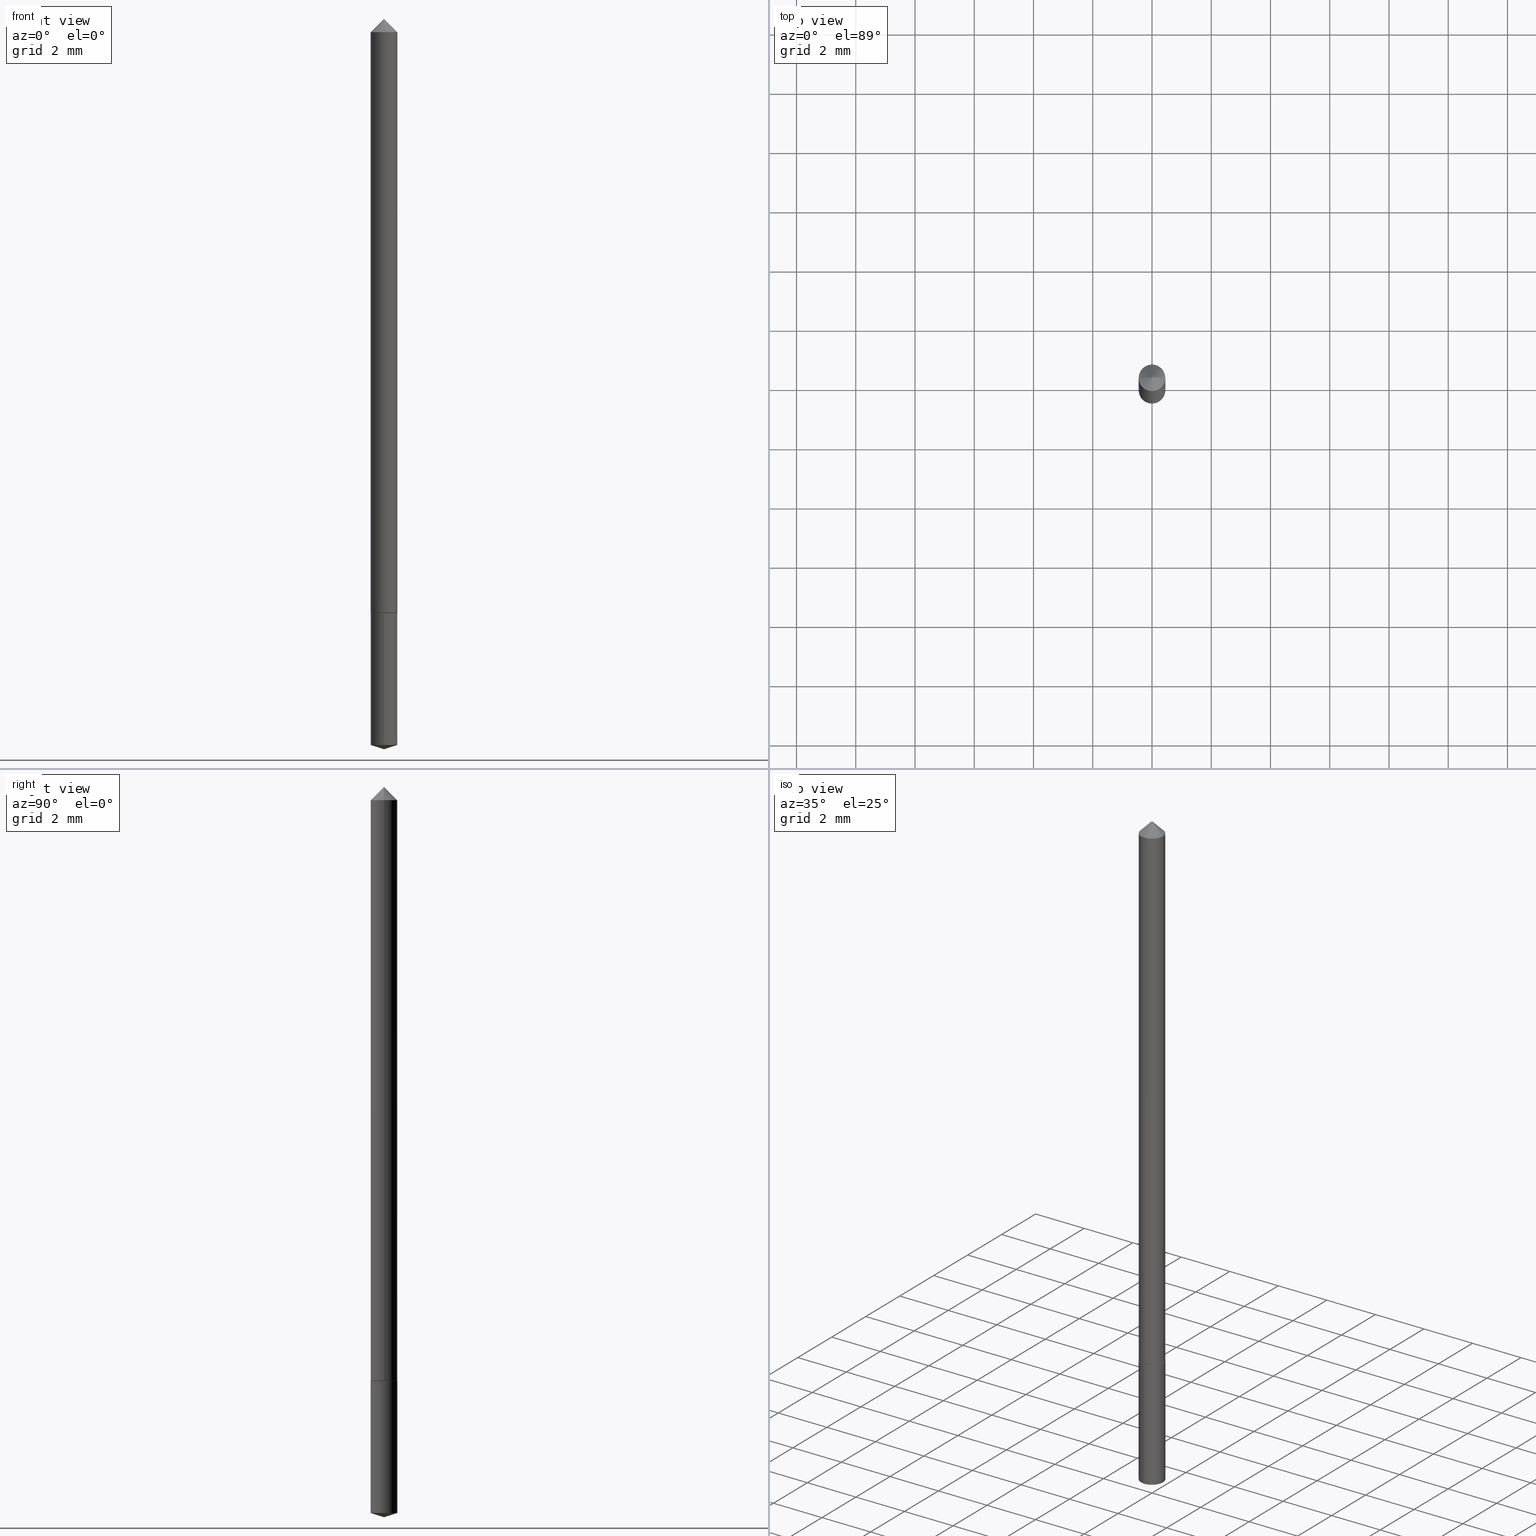
[diagram: canonical four-view strip — front | top / right | iso, engineering-drawing reading convention]
A machine part, canonical four-view strip (front | top / right | iso — engineering-drawing reading convention). The complete STEP part file that produces these views, byte-faithful:
ISO-10303-21;
HEADER;
FILE_DESCRIPTION (( 'STEP AP203' ),
    '1' );
FILE_NAME ('68651.STEP',
    '2024-04-23T13:23:44',
    ( '' ),
    ( '' ),
    'SwSTEP 2.0',
    'SolidWorks 2023',
    '' );
FILE_SCHEMA (( 'CONFIG_CONTROL_DESIGN' ));
ENDSEC;

DATA;
#1 = CARTESIAN_POINT ( 'NONE',  ( -0.01770000000000005250, 1.257660642295381059E-16, -8.706515109751208922E-31 ) ) ;
#2 = COORDINATED_UNIVERSAL_TIME_OFFSET ( 5, 0, .BEHIND. ) ;
#3 = CIRCLE ( 'NONE', #65, 0.01720000000000009369 ) ;
#4 = CARTESIAN_POINT ( 'NONE',  ( 2.407125176646634225E-29, -3.436593148575311212E-15, -0.9842999999999999527 ) ) ;
#5 = COORDINATED_UNIVERSAL_TIME_OFFSET ( 5, 0, .BEHIND. ) ;
#6 = ADVANCED_FACE ( 'NONE', ( #298 ), #181, .T. ) ;
#7 = PERSON_AND_ORGANIZATION_ROLE ( 'design_owner' ) ;
#8 = CYLINDRICAL_SURFACE ( 'NONE', #321, 0.01770000000000000046 ) ;
#9 = ORIENTED_EDGE ( 'NONE', *, *, #195, .F. ) ;
#10 = DIRECTION ( 'NONE',  ( 2.445468806185136597E-29, -3.491481338843145583E-15, -1.000000000000000000 ) ) ;
#11 = MANIFOLD_SOLID_BREP ( 'Body-Move/Copy2[2]', #364 ) ;
#12 = CARTESIAN_POINT ( 'NONE',  ( 2.393436258665223768E-29, -3.417167035647336902E-15, -0.9787192114368419293 ) ) ;
#13 = ADVANCED_FACE ( 'NONE', ( #325 ), #95, .F. ) ;
#14 = AXIS2_PLACEMENT_3D ( 'NONE', #193, #34, #134 ) ;
#15 = CIRCLE ( 'NONE', #352, 0.01720000000000009369 ) ;
#16 = CARTESIAN_POINT ( 'NONE',  ( -0.01720000000000009369, -2.679495233633965390E-15, -0.8031999999999999140 ) ) ;
#17 = APPLICATION_PROTOCOL_DEFINITION ( 'international standard', 'config_control_design', 1994, #20 ) ;
#18 = LOCAL_TIME ( 9, 23, 44.00000000000000000, #229 ) ;
#19 = DIRECTION ( 'NONE',  ( -2.445519838104881031E-29, 3.491408258229514886E-15, 1.000000000000000000 ) ) ;
#20 = APPLICATION_CONTEXT ( 'configuration controlled 3d designs of mechanical parts and assemblies' ) ;
#21 = PERSON ( 'UNSPECIFIED', 'UNSPECIFIED', 'UNSPECIFIED', ('UNSPECIFIED'), ('UNSPECIFIED'), ('UNSPECIFIED') ) ;
#22 = AXIS2_PLACEMENT_3D ( 'NONE', #266, #19, #123 ) ;
#23 = EDGE_CURVE ( 'NONE', #329, #187, #345, .T. ) ;
#24 = PERSON_AND_ORGANIZATION_ROLE ( 'classification_officer' ) ;
#25 = EDGE_CURVE ( 'NONE', #74, #220, #283, .T. ) ;
#26 = CC_DESIGN_PERSON_AND_ORGANIZATION_ASSIGNMENT ( #91, #24, ( #102 ) ) ;
#27 = CONICAL_SURFACE ( 'NONE', #169, 124.8659371009137971, 1.265363707695888795 ) ;
#28 = CALENDAR_DATE ( 2024, 23, 4 ) ;
#29 = DATE_TIME_ROLE ( 'creation_date' ) ;
#30 = EDGE_CURVE ( 'NONE', #187, #43, #208, .T. ) ;
#31 = DIRECTION ( 'NONE',  ( -0.7071067811865453523, 2.468850131082234184E-15, -0.7071067811865496822 ) ) ;
#32 = APPROVAL ( #108, 'UNSPECIFIED' ) ;
#33 = DIRECTION ( 'NONE',  ( 1.000000000000000000, -6.982962677686261189E-15, 0.000000000000000000 ) ) ;
#34 = DIRECTION ( 'NONE',  ( -2.445519838104881031E-29, 3.491408258229514886E-15, 1.000000000000000000 ) ) ;
#35 = FACE_OUTER_BOUND ( 'NONE', #346, .T. ) ;
#36 = PERSON_AND_ORGANIZATION ( #21, #57 ) ;
#37 = FACE_OUTER_BOUND ( 'NONE', #260, .T. ) ;
#38 = DIRECTION ( 'NONE',  ( -6.982962677686265133E-15, -1.000000000000000000, 0.000000000000000000 ) ) ;
#39 = VERTEX_POINT ( 'NONE', #304 ) ;
#40 = MECHANICAL_CONTEXT ( 'NONE', #83, 'mechanical' ) ;
#41 = CC_DESIGN_APPROVAL ( #237, ( #227 ) ) ;
#42 = ORIENTED_EDGE ( 'NONE', *, *, #204, .T. ) ;
#43 = VERTEX_POINT ( 'NONE', #300 ) ;
#44 = AXIS2_PLACEMENT_3D ( 'NONE', #255, #257, #335 ) ;
#45 = VERTEX_POINT ( 'NONE', #224 ) ;
#46 = CARTESIAN_POINT ( 'NONE',  ( 1.964200545127901750E-29, -2.804357811358814562E-15, -0.8031999999999999140 ) ) ;
#47 = AXIS2_PLACEMENT_3D ( 'NONE', #110, #231, #319 ) ;
#48 = LOCAL_TIME ( 9, 23, 44.00000000000000000, #2 ) ;
#49 = FACE_OUTER_BOUND ( 'NONE', #244, .T. ) ;
#50 = PERSON_AND_ORGANIZATION ( #21, #57 ) ;
#51 = DIRECTION ( 'NONE',  ( -2.445468806185136597E-29, 3.491481338843145583E-15, 1.000000000000000000 ) ) ;
#52 = DATE_TIME_ROLE ( 'classification_date' ) ;
#53 = APPROVAL_DATE_TIME ( #275, #237 ) ;
#54 = DIRECTION ( 'NONE',  ( -2.445519838104881031E-29, 3.491408258229514886E-15, 1.000000000000000000 ) ) ;
#55 = CIRCLE ( 'NONE', #63, 0.01770000000000000046 ) ;
#56 = ORIENTED_EDGE ( 'NONE', *, *, #82, .T. ) ;
#57 = ORGANIZATION ( 'UNSPECIFIED', 'UNSPECIFIED', '' ) ;
#58 = DIRECTION ( 'NONE',  ( 1.000000000000000000, -6.982962677686266711E-15, 4.876176775795935793E-29 ) ) ;
#59 = ORIENTED_EDGE ( 'NONE', *, *, #252, .T. ) ;
#60 = FACE_OUTER_BOUND ( 'NONE', #147, .T. ) ;
#61 = ORIENTED_EDGE ( 'NONE', *, *, #149, .T. ) ;
#62 = ORIENTED_EDGE ( 'NONE', *, *, #303, .F. ) ;
#63 = AXIS2_PLACEMENT_3D ( 'NONE', #12, #341, #201 ) ;
#64 = ORIENTED_EDGE ( 'NONE', *, *, #25, .T. ) ;
#65 = AXIS2_PLACEMENT_3D ( 'NONE', #125, #316, #78 ) ;
#66 =( CONVERSION_BASED_UNIT ( 'INCH', #211 ) LENGTH_UNIT ( ) NAMED_UNIT ( #272 ) );
#67 = EDGE_CURVE ( 'NONE', #45, #313, #112, .T. ) ;
#68 = PRODUCT_DEFINITION_FORMATION_WITH_SPECIFIED_SOURCE ( 'ANY', '', #308, .NOT_KNOWN. ) ;
#69 = EDGE_CURVE ( 'NONE', #39, #329, #55, .T. ) ;
#70 = ORIENTED_EDGE ( 'NONE', *, *, #128, .T. ) ;
#71 = DIRECTION ( 'NONE',  ( -2.445468806185136597E-29, 3.491481338843145583E-15, 1.000000000000000000 ) ) ;
#72 = DIRECTION ( 'NONE',  ( -2.445519838104881031E-29, 3.491408258229514886E-15, 1.000000000000000000 ) ) ;
#73 = EDGE_LOOP ( 'NONE', ( #241, #56, #235 ) ) ;
#74 = VERTEX_POINT ( 'NONE', #79 ) ;
#75 = ORIENTED_EDGE ( 'NONE', *, *, #148, .T. ) ;
#76 = ORIENTED_EDGE ( 'NONE', *, *, #293, .F. ) ;
#77 = CARTESIAN_POINT ( 'NONE',  ( -1.235984393950272671E-16, -0.01770000000000280377, -0.8031999999999999140 ) ) ;
#78 = DIRECTION ( 'NONE',  ( 1.000000000000000000, -6.982962677686261189E-15, 0.000000000000000000 ) ) ;
#79 = CARTESIAN_POINT ( 'NONE',  ( 3.313610232380880942E-31, -4.730957214132492224E-17, -0.01355000000000008455 ) ) ;
#80 = AXIS2_PLACEMENT_3D ( 'NONE', #118, #216, #192 ) ;
#81 = ADVANCED_FACE ( 'NONE', ( #49 ), #104, .T. ) ;
#82 = EDGE_CURVE ( 'NONE', #140, #329, #99, .T. ) ;
#83 = APPLICATION_CONTEXT ( 'configuration controlled 3d designs of mechanical parts and assemblies' ) ;
#84 = CARTESIAN_POINT ( 'NONE',  ( -0.01770000000000000392, 1.448964755619795269E-17, -0.03125000000000020123 ) ) ;
#85 = LINE ( 'NONE', #339, #264 ) ;
#86 = FACE_OUTER_BOUND ( 'NONE', #269, .T. ) ;
#87 = CARTESIAN_POINT ( 'NONE',  ( 0.000000000000000000, 0.000000000000000000, 0.000000000000000000 ) ) ;
#88 = APPROVAL_DATE_TIME ( #262, #153 ) ;
#89 = PERSON_AND_ORGANIZATION ( #21, #57 ) ;
#90 = ORIENTED_EDGE ( 'NONE', *, *, #128, .F. ) ;
#91 = PERSON_AND_ORGANIZATION ( #21, #57 ) ;
#92 = CONICAL_SURFACE ( 'NONE', #334, 0.01770000000000000392, 0.7853981633974452814 ) ;
#93 = ORIENTED_EDGE ( 'NONE', *, *, #23, .T. ) ;
#94 = CARTESIAN_POINT ( 'NONE',  ( 1.964200545127901750E-29, -2.804357811358814562E-15, -0.8031999999999999140 ) ) ;
#95 = PLANE ( 'NONE',  #119 ) ;
#96 = CALENDAR_DATE ( 2024, 23, 4 ) ;
#97 = EDGE_LOOP ( 'NONE', ( #270, #354, #117, #314 ) ) ;
#98 = ORIENTED_EDGE ( 'NONE', *, *, #284, .F. ) ;
#99 = LINE ( 'NONE', #136, #331 ) ;
#100 = APPROVAL_ROLE ( '' ) ;
#101 = CIRCLE ( 'NONE', #144, 0.01770000000000000046 ) ;
#102 = SECURITY_CLASSIFICATION ( '', '', #130 ) ;
#103 = ADVANCED_FACE ( 'NONE', ( #60 ), #150, .T. ) ;
#104 = CYLINDRICAL_SURFACE ( 'NONE', #176, 0.01770000000000005250 ) ;
#105 = ADVANCED_FACE ( 'NONE', ( #86 ), #8, .T. ) ;
#106 = CC_DESIGN_PERSON_AND_ORGANIZATION_ASSIGNMENT ( #36, #121, ( #68 ) ) ;
#107 = CARTESIAN_POINT ( 'NONE',  ( 1.257660642295573590E-16, 0.01769999999999719714, -0.8031999999999999140 ) ) ;
#108 = APPROVAL_STATUS ( 'not_yet_approved' ) ;
#109 = PERSON_AND_ORGANIZATION ( #21, #57 ) ;
#110 = CARTESIAN_POINT ( 'NONE',  ( 1.964200545127901750E-29, -2.804357811358814562E-15, -0.8031999999999999140 ) ) ;
#111 = FACE_OUTER_BOUND ( 'NONE', #97, .T. ) ;
#112 = CIRCLE ( 'NONE', #44, 0.01770000000000009760 ) ;
#113 = ORIENTED_EDGE ( 'NONE', *, *, #69, .T. ) ;
#114 = DIRECTION ( 'NONE',  ( -1.000000000000000000, 6.982962677686265922E-15, 0.000000000000000000 ) ) ;
#115 = AXIS2_PLACEMENT_3D ( 'NONE', #196, #51, #33 ) ;
#116 = CARTESIAN_POINT ( 'NONE',  ( 7.642090019328600035E-31, -1.091087918388489897E-16, -0.03125000000000020123 ) ) ;
#117 = ORIENTED_EDGE ( 'NONE', *, *, #67, .F. ) ;
#118 = CARTESIAN_POINT ( 'NONE',  ( 7.642090019328600035E-31, -1.091087918388489897E-16, -0.03125000000000020123 ) ) ;
#119 = AXIS2_PLACEMENT_3D ( 'NONE', #46, #159, #165 ) ;
#120 = CC_DESIGN_DATE_AND_TIME_ASSIGNMENT ( #302, #52, ( #102 ) ) ;
#121 = PERSON_AND_ORGANIZATION_ROLE ( 'design_supplier' ) ;
#122 = VERTEX_POINT ( 'NONE', #222 ) ;
#123 = DIRECTION ( 'NONE',  ( -6.982962677686265922E-15, -1.000000000000000000, 3.500519750498739931E-15 ) ) ;
#124 = CARTESIAN_POINT ( 'NONE',  ( 1.962977810724808948E-29, -2.802612070689392664E-15, -0.8026999999999998581 ) ) ;
#125 = CARTESIAN_POINT ( 'NONE',  ( 1.964200545127901750E-29, -2.804357811358814562E-15, -0.8031999999999999140 ) ) ;
#126 = CIRCLE ( 'NONE', #182, 0.01770000000000000392 ) ;
#127 = ORIENTED_EDGE ( 'NONE', *, *, #160, .F. ) ;
#128 = EDGE_CURVE ( 'NONE', #74, #122, #174, .T. ) ;
#129 = ORIENTED_EDGE ( 'NONE', *, *, #252, .F. ) ;
#130 = SECURITY_CLASSIFICATION_LEVEL ( 'unclassified' ) ;
#131 = ORIENTED_EDGE ( 'NONE', *, *, #160, .T. ) ;
#132 = LINE ( 'NONE', #107, #143 ) ;
#133 = AXIS2_PLACEMENT_3D ( 'NONE', #213, #186, #274 ) ;
#134 = DIRECTION ( 'NONE',  ( -6.982962677686265133E-15, -1.000000000000000000, 0.000000000000000000 ) ) ;
#135 = CC_DESIGN_PERSON_AND_ORGANIZATION_ASSIGNMENT ( #109, #194, ( #227 ) ) ;
#136 = CARTESIAN_POINT ( 'NONE',  ( 2.407043198970756416E-29, -3.436710545273047722E-15, -0.9842999999999999527 ) ) ;
#137 = DATE_AND_TIME ( #279, #48 ) ;
#138 = FACE_OUTER_BOUND ( 'NONE', #155, .T. ) ;
#139 = DIRECTION ( 'NONE',  ( -2.445468806185136597E-29, 3.491481338843145583E-15, 1.000000000000000000 ) ) ;
#140 = VERTEX_POINT ( 'NONE', #4 ) ;
#141 = CARTESIAN_POINT ( 'NONE',  ( 7.642090019328600035E-31, -1.091087918388489897E-16, -0.03125000000000020123 ) ) ;
#142 = DIRECTION ( 'NONE',  ( -6.982962677686265133E-15, -1.000000000000000000, 0.000000000000000000 ) ) ;
#143 = VECTOR ( 'NONE', #281, 39.37007874015748143 ) ;
#144 = AXIS2_PLACEMENT_3D ( 'NONE', #265, #184, #357 ) ;
#145 = LINE ( 'NONE', #236, #277 ) ;
#146 = CARTESIAN_POINT ( 'NONE',  ( -0.01770000000000000392, -1.330094367034580829E-15, -0.03125000000000020123 ) ) ;
#147 = EDGE_LOOP ( 'NONE', ( #287, #70, #131 ) ) ;
#148 = EDGE_CURVE ( 'NONE', #329, #39, #305, .T. ) ;
#149 = EDGE_CURVE ( 'NONE', #39, #43, #132, .T. ) ;
#150 = CONICAL_SURFACE ( 'NONE', #232, 0.01770000000000000392, 0.7853981633974452814 ) ;
#151 = LOCAL_TIME ( 9, 23, 44.00000000000000000, #197 ) ;
#152 = CIRCLE ( 'NONE', #80, 0.01770000000000000392 ) ;
#153 = APPROVAL ( #247, 'UNSPECIFIED' ) ;
#154 = ORIENTED_EDGE ( 'NONE', *, *, #284, .T. ) ;
#155 = EDGE_LOOP ( 'NONE', ( #75, #61, #245, #358 ) ) ;
#156 = CALENDAR_DATE ( 2024, 23, 4 ) ;
#157 = PERSON_AND_ORGANIZATION ( #21, #57 ) ;
#158 = PERSON_AND_ORGANIZATION ( #21, #57 ) ;
#159 = DIRECTION ( 'NONE',  ( -2.438088387897960049E-29, 3.491481338843145188E-15, 1.000000000000000000 ) ) ;
#160 = EDGE_CURVE ( 'NONE', #122, #220, #126, .T. ) ;
#161 = VECTOR ( 'NONE', #207, 39.37007874015748143 ) ;
#162 = APPROVAL_PERSON_ORGANIZATION ( #164, #153, #100 ) ;
#163 = CARTESIAN_POINT ( 'NONE',  ( 0.000000000000000000, 0.000000000000000000, 0.000000000000000000 ) ) ;
#164 = PERSON_AND_ORGANIZATION ( #21, #57 ) ;
#165 = DIRECTION ( 'NONE',  ( 1.000000000000000000, -6.982962677686265922E-15, 4.876176775795935793E-29 ) ) ;
#166 = VECTOR ( 'NONE', #31, 39.37007874015748143 ) ;
#167 = CARTESIAN_POINT ( 'NONE',  ( 2.393436258665223768E-29, -3.417167035647336902E-15, -0.9787192114368419293 ) ) ;
#168 = APPROVAL_STATUS ( 'not_yet_approved' ) ;
#169 = AXIS2_PLACEMENT_3D ( 'NONE', #309, #173, #288 ) ;
#170 = EDGE_LOOP ( 'NONE', ( #76, #129 ) ) ;
#171 = PLANE ( 'NONE',  #47 ) ;
#172 = DIRECTION ( 'NONE',  ( -1.000000000000000000, 6.982962677686265922E-15, 0.000000000000000000 ) ) ;
#173 = DIRECTION ( 'NONE',  ( -2.445519838104881031E-29, 3.491408258229514886E-15, 1.000000000000000000 ) ) ;
#174 = LINE ( 'NONE', #205, #350 ) ;
#175 = ORIENTED_EDGE ( 'NONE', *, *, #204, .F. ) ;
#176 = AXIS2_PLACEMENT_3D ( 'NONE', #163, #301, #58 ) ;
#177 =( LENGTH_UNIT ( ) NAMED_UNIT ( * ) SI_UNIT ( $, .METRE. ) );
#178 = ORIENTED_EDGE ( 'NONE', *, *, #82, .F. ) ;
#179 = APPLICATION_PROTOCOL_DEFINITION ( 'international standard', 'config_control_design', 1994, #83 ) ;
#180 = ADVANCED_FACE ( 'NONE', ( #35 ), #246, .T. ) ;
#181 = CONICAL_SURFACE ( 'NONE', #133, 0.01770000000000009760, 0.7853981633974184140 ) ;
#182 = AXIS2_PLACEMENT_3D ( 'NONE', #333, #285, #228 ) ;
#183 = DIRECTION ( 'NONE',  ( 1.000000000000000000, -6.982962677686261189E-15, 0.000000000000000000 ) ) ;
#184 = DIRECTION ( 'NONE',  ( -2.445519838104881031E-29, 3.491408258229514886E-15, 1.000000000000000000 ) ) ;
#185 = DIRECTION ( 'NONE',  ( -6.982962677686265133E-15, -1.000000000000000000, 0.000000000000000000 ) ) ;
#186 = DIRECTION ( 'NONE',  ( -2.445468806185136597E-29, 3.491481338843145583E-15, 1.000000000000000000 ) ) ;
#187 = VERTEX_POINT ( 'NONE', #77 ) ;
#188 = ADVANCED_FACE ( 'NONE', ( #111 ), #248, .T. ) ;
#189 = ORIENTED_EDGE ( 'NONE', *, *, #320, .T. ) ;
#190 = CALENDAR_DATE ( 2024, 23, 4 ) ;
#191 = AXIS2_PLACEMENT_3D ( 'NONE', #167, #280, #142 ) ;
#192 = DIRECTION ( 'NONE',  ( 1.000000000000000000, -6.982962677686265922E-15, 0.000000000000000000 ) ) ;
#193 = CARTESIAN_POINT ( 'NONE',  ( 1.964200545127901750E-29, -2.804357811358814562E-15, -0.8031999999999999140 ) ) ;
#194 = PERSON_AND_ORGANIZATION_ROLE ( 'creator' ) ;
#195 = EDGE_CURVE ( 'NONE', #313, #220, #249, .T. ) ;
#196 = CARTESIAN_POINT ( 'NONE',  ( 1.962977810724808948E-29, -2.802612070689392664E-15, -0.8026999999999998581 ) ) ;
#197 = COORDINATED_UNIVERSAL_TIME_OFFSET ( 5, 0, .BEHIND. ) ;
#198 = DIRECTION ( 'NONE',  ( 2.445468806185136597E-29, -3.491481338843145583E-15, -1.000000000000000000 ) ) ;
#199 = ORIENTED_EDGE ( 'NONE', *, *, #324, .F. ) ;
#200 = DIRECTION ( 'NONE',  ( 0.7071067811865263675, -2.468850131082035391E-15, 0.7071067811865686670 ) ) ;
#201 = DIRECTION ( 'NONE',  ( -6.982962677686265133E-15, -1.000000000000000000, 0.000000000000000000 ) ) ;
#202 = ORIENTED_EDGE ( 'NONE', *, *, #320, .F. ) ;
#203 = FACE_OUTER_BOUND ( 'NONE', #73, .T. ) ;
#204 = EDGE_CURVE ( 'NONE', #43, #187, #101, .T. ) ;
#205 = CARTESIAN_POINT ( 'NONE',  ( 0.01770000000000000392, -2.305396063994051445E-16, -0.03125000000000020123 ) ) ;
#206 = DIRECTION ( 'NONE',  ( 0.000000000000000000, 0.000000000000000000, 1.000000000000000000 ) ) ;
#207 = DIRECTION ( 'NONE',  ( -2.445468806185136877E-29, 3.491481338843145188E-15, 1.000000000000000000 ) ) ;
#208 = CIRCLE ( 'NONE', #14, 0.01770000000000000046 ) ;
#209 = ORIENTED_EDGE ( 'NONE', *, *, #271, .T. ) ;
#210 = AXIS2_PLACEMENT_3D ( 'NONE', #87, #206, #261 ) ;
#211 = LENGTH_MEASURE_WITH_UNIT ( LENGTH_MEASURE( 0.02539999999999999897 ), #177 );
#212 = UNCERTAINTY_MEASURE_WITH_UNIT (LENGTH_MEASURE( 1.000000000000000082E-05 ), #66, 'distance_accuracy_value', 'NONE');
#213 = CARTESIAN_POINT ( 'NONE',  ( 1.962977810724808948E-29, -2.802612070689392664E-15, -0.8026999999999998581 ) ) ;
#214 = COORDINATED_UNIVERSAL_TIME_OFFSET ( 5, 0, .BEHIND. ) ;
#215 = DATE_AND_TIME ( #96, #327 ) ;
#216 = DIRECTION ( 'NONE',  ( -2.445468806185136597E-29, 3.491481338843145583E-15, 1.000000000000000000 ) ) ;
#217 = PRODUCT_RELATED_PRODUCT_CATEGORY ( 'detail', '', ( #308 ) ) ;
#218 = EDGE_LOOP ( 'NONE', ( #355, #42 ) ) ;
#219 = CARTESIAN_POINT ( 'NONE',  ( 0.01770000000000005250, -1.235984393950472844E-16, 8.630832893158832123E-31 ) ) ;
#220 = VERTEX_POINT ( 'NONE', #146 ) ;
#221 = CC_DESIGN_DATE_AND_TIME_ASSIGNMENT ( #137, #29, ( #227 ) ) ;
#222 = CARTESIAN_POINT ( 'NONE',  ( 0.01770000000000000392, -2.327072312338959414E-16, -0.03125000000000020123 ) ) ;
#223 = ORIENTED_EDGE ( 'NONE', *, *, #67, .T. ) ;
#224 = CARTESIAN_POINT ( 'NONE',  ( 0.01770000000000009760, -2.926210510084440245E-15, -0.8026999999999998581 ) ) ;
#225 = AXIS2_PLACEMENT_3D ( 'NONE', #124, #71, #183 ) ;
#226 = CARTESIAN_POINT ( 'NONE',  ( 0.01770000000000009760, -2.926210510084440245E-15, -0.8026999999999998581 ) ) ;
#227 = PRODUCT_DEFINITION ( 'UNKNOWN', '', #68, #344 ) ;
#228 = DIRECTION ( 'NONE',  ( 1.000000000000000000, -6.982962677686265922E-15, 0.000000000000000000 ) ) ;
#229 = COORDINATED_UNIVERSAL_TIME_OFFSET ( 5, 0, .BEHIND. ) ;
#230 = ORIENTED_EDGE ( 'NONE', *, *, #259, .T. ) ;
#231 = DIRECTION ( 'NONE',  ( 2.445519838104880471E-29, -3.491408258229515280E-15, -1.000000000000000000 ) ) ;
#232 = AXIS2_PLACEMENT_3D ( 'NONE', #116, #198, #172 ) ;
#233 = DIRECTION ( 'NONE',  ( -2.445519838104881312E-29, 3.491408258229515280E-15, 1.000000000000000000 ) ) ;
#234 = CARTESIAN_POINT ( 'NONE',  ( 1.964200545127901750E-29, -2.804357811358814562E-15, -0.8031999999999999140 ) ) ;
#235 = ORIENTED_EDGE ( 'NONE', *, *, #69, .F. ) ;
#236 = CARTESIAN_POINT ( 'NONE',  ( 2.407125895494084771E-29, -3.436593148575311212E-15, -0.9842999999999999527 ) ) ;
#237 = APPROVAL ( #168, 'UNSPECIFIED' ) ;
#238 = VECTOR ( 'NONE', #310, 39.37007874015748143 ) ;
#239 = CLOSED_SHELL ( 'NONE', ( #360, #278, #267, #105, #299 ) ) ;
#240 = CC_DESIGN_APPROVAL ( #32, ( #102 ) ) ;
#241 = ORIENTED_EDGE ( 'NONE', *, *, #271, .F. ) ;
#242 = MANIFOLD_SOLID_BREP ( 'Body-Move/Copy2[1]', #239 ) ;
#243 = LINE ( 'NONE', #219, #238 ) ;
#244 = EDGE_LOOP ( 'NONE', ( #9, #154, #189, #62 ) ) ;
#245 = ORIENTED_EDGE ( 'NONE', *, *, #30, .F. ) ;
#246 = CYLINDRICAL_SURFACE ( 'NONE', #282, 0.01770000000000005250 ) ;
#247 = APPROVAL_STATUS ( 'not_yet_approved' ) ;
#248 = CONICAL_SURFACE ( 'NONE', #115, 0.01770000000000009760, 0.7853981633974184140 ) ;
#249 = LINE ( 'NONE', #1, #161 ) ;
#250 = LINE ( 'NONE', #226, #294 ) ;
#251 = DIRECTION ( 'NONE',  ( -6.659769872151625778E-15, -0.9537169507482258224, 0.3007057995042766163 ) ) ;
#252 = EDGE_CURVE ( 'NONE', #362, #263, #15, .T. ) ;
#253 = DIRECTION ( 'NONE',  ( -0.7071067811865263675, 7.493145998870278430E-15, 0.7071067811865686670 ) ) ;
#254 = PRODUCT_DEFINITION_SHAPE ( 'NONE', 'NONE',  #227 ) ;
#255 = CARTESIAN_POINT ( 'NONE',  ( 1.962977810724808948E-29, -2.802612070689392664E-15, -0.8026999999999998581 ) ) ;
#256 = APPROVAL_DATE_TIME ( #215, #32 ) ;
#257 = DIRECTION ( 'NONE',  ( -2.445468806185136597E-29, 3.491481338843145583E-15, 1.000000000000000000 ) ) ;
#258 = ORIENTED_EDGE ( 'NONE', *, *, #195, .T. ) ;
#259 = EDGE_CURVE ( 'NONE', #263, #45, #250, .T. ) ;
#260 = EDGE_LOOP ( 'NONE', ( #90, #64, #292 ) ) ;
#261 = DIRECTION ( 'NONE',  ( 1.000000000000000000, 0.000000000000000000, 0.000000000000000000 ) ) ;
#262 = DATE_AND_TIME ( #28, #18 ) ;
#263 = VERTEX_POINT ( 'NONE', #296 ) ;
#264 = VECTOR ( 'NONE', #253, 39.37007874015748143 ) ;
#265 = CARTESIAN_POINT ( 'NONE',  ( 1.964200545127901750E-29, -2.804357811358814562E-15, -0.8031999999999999140 ) ) ;
#266 = CARTESIAN_POINT ( 'NONE',  ( -9.387322439899764173E-28, 1.340203661936078885E-13, 38.38577874015747682 ) ) ;
#267 = ADVANCED_FACE ( 'NONE', ( #203 ), #27, .T. ) ;
#268 = ADVANCED_FACE ( 'NONE', ( #37 ), #92, .T. ) ;
#269 = EDGE_LOOP ( 'NONE', ( #323, #113, #93, #175 ) ) ;
#270 = ORIENTED_EDGE ( 'NONE', *, *, #293, .T. ) ;
#271 = EDGE_CURVE ( 'NONE', #140, #39, #145, .T. ) ;
#272 = DIMENSIONAL_EXPONENTS ( 1.000000000000000000, 0.000000000000000000, 0.000000000000000000, 0.000000000000000000, 0.000000000000000000, 0.000000000000000000, 0.000000000000000000 ) ;
#273 = CYLINDRICAL_SURFACE ( 'NONE', #307, 0.01770000000000000046 ) ;
#274 = DIRECTION ( 'NONE',  ( 1.000000000000000000, -6.982962677686261189E-15, 0.000000000000000000 ) ) ;
#275 = DATE_AND_TIME ( #190, #322 ) ;
#276 = CC_DESIGN_PERSON_AND_ORGANIZATION_ASSIGNMENT ( #89, #297, ( #68 ) ) ;
#277 = VECTOR ( 'NONE', #349, 39.37007874015748854 ) ;
#278 = ADVANCED_FACE ( 'NONE', ( #317 ), #318, .T. ) ;
#279 = CALENDAR_DATE ( 2024, 23, 4 ) ;
#280 = DIRECTION ( 'NONE',  ( -2.445519838104881031E-29, 3.491408258229514886E-15, 1.000000000000000000 ) ) ;
#281 = DIRECTION ( 'NONE',  ( -2.445519838104881312E-29, 3.491408258229515280E-15, 1.000000000000000000 ) ) ;
#282 = AXIS2_PLACEMENT_3D ( 'NONE', #337, #139, #363 ) ;
#283 = LINE ( 'NONE', #84, #166 ) ;
#284 = EDGE_CURVE ( 'NONE', #313, #45, #361, .T. ) ;
#285 = DIRECTION ( 'NONE',  ( -2.445468806185136597E-29, 3.491481338843145583E-15, 1.000000000000000000 ) ) ;
#286 = SHAPE_DEFINITION_REPRESENTATION ( #254, #348 ) ;
#287 = ORIENTED_EDGE ( 'NONE', *, *, #25, .F. ) ;
#288 = DIRECTION ( 'NONE',  ( -6.982962677686265922E-15, -1.000000000000000000, 3.500519750498739931E-15 ) ) ;
#289 = DIRECTION ( 'NONE',  ( -2.445468806185136597E-29, 3.491481338843145583E-15, 1.000000000000000000 ) ) ;
#290 = CARTESIAN_POINT ( 'NONE',  ( -1.235984393950229777E-16, -0.01770000000000341786, -0.9787192114368419293 ) ) ;
#291 = DIRECTION ( 'NONE',  ( 0.7071067811865453523, -7.319954787623248157E-15, -0.7071067811865496822 ) ) ;
#292 = ORIENTED_EDGE ( 'NONE', *, *, #303, .T. ) ;
#293 = EDGE_CURVE ( 'NONE', #263, #362, #3, .T. ) ;
#294 = VECTOR ( 'NONE', #200, 39.37007874015748143 ) ;
#295 =( GEOMETRIC_REPRESENTATION_CONTEXT ( 3 ) GLOBAL_UNCERTAINTY_ASSIGNED_CONTEXT ( ( #212 ) ) GLOBAL_UNIT_ASSIGNED_CONTEXT ( ( #66, #340, #311 ) ) REPRESENTATION_CONTEXT ( 'NONE', 'WORKASPACE' ) );
#296 = CARTESIAN_POINT ( 'NONE',  ( 0.01720000000000009369, -2.924464769415018741E-15, -0.8031999999999999140 ) ) ;
#297 = PERSON_AND_ORGANIZATION_ROLE ( 'creator' ) ;
#298 = FACE_OUTER_BOUND ( 'NONE', #353, .T. ) ;
#299 = ADVANCED_FACE ( 'NONE', ( #306 ), #171, .F. ) ;
#300 = CARTESIAN_POINT ( 'NONE',  ( 1.257660642295616978E-16, 0.01769999999999719714, -0.8031999999999999140 ) ) ;
#301 = DIRECTION ( 'NONE',  ( -2.445468806185136597E-29, 3.491481338843145583E-15, 1.000000000000000000 ) ) ;
#302 = DATE_AND_TIME ( #156, #151 ) ;
#303 = EDGE_CURVE ( 'NONE', #220, #122, #152, .T. ) ;
#304 = CARTESIAN_POINT ( 'NONE',  ( 1.257660642295616485E-16, 0.01769999999999658305, -0.9787192114368419293 ) ) ;
#305 = CIRCLE ( 'NONE', #191, 0.01770000000000000046 ) ;
#306 = FACE_OUTER_BOUND ( 'NONE', #218, .T. ) ;
#307 = AXIS2_PLACEMENT_3D ( 'NONE', #351, #72, #185 ) ;
#308 = PRODUCT ( '68651', '68651', '', ( #40 ) ) ;
#309 = CARTESIAN_POINT ( 'NONE',  ( -9.387322439899764173E-28, 1.340203661936078885E-13, 38.38577874015747682 ) ) ;
#310 = DIRECTION ( 'NONE',  ( -2.445468806185136877E-29, 3.491481338843145188E-15, 1.000000000000000000 ) ) ;
#311 =( NAMED_UNIT ( * ) SI_UNIT ( $, .STERADIAN. ) SOLID_ANGLE_UNIT ( ) );
#312 = CARTESIAN_POINT ( 'NONE',  ( -1.235984393950272671E-16, -0.01770000000000280377, -0.8031999999999999140 ) ) ;
#313 = VERTEX_POINT ( 'NONE', #336 ) ;
#314 = ORIENTED_EDGE ( 'NONE', *, *, #259, .F. ) ;
#315 = APPROVAL_PERSON_ORGANIZATION ( #50, #237, #330 ) ;
#316 = DIRECTION ( 'NONE',  ( -2.445468806185136597E-29, 3.491481338843145583E-15, 1.000000000000000000 ) ) ;
#317 = FACE_OUTER_BOUND ( 'NONE', #328, .T. ) ;
#318 = CONICAL_SURFACE ( 'NONE', #22, 124.8659371009137971, 1.265363707695888795 ) ;
#319 = DIRECTION ( 'NONE',  ( 6.982962677686265922E-15, 1.000000000000000000, -3.491408258229515280E-15 ) ) ;
#320 = EDGE_CURVE ( 'NONE', #45, #122, #243, .T. ) ;
#321 = AXIS2_PLACEMENT_3D ( 'NONE', #234, #54, #38 ) ;
#322 = LOCAL_TIME ( 9, 23, 44.00000000000000000, #5 ) ;
#323 = ORIENTED_EDGE ( 'NONE', *, *, #149, .F. ) ;
#324 = EDGE_CURVE ( 'NONE', #362, #313, #85, .T. ) ;
#325 = FACE_OUTER_BOUND ( 'NONE', #170, .T. ) ;
#326 = VECTOR ( 'NONE', #233, 39.37007874015748143 ) ;
#327 = LOCAL_TIME ( 9, 23, 44.00000000000000000, #214 ) ;
#328 = EDGE_LOOP ( 'NONE', ( #178, #209, #343 ) ) ;
#329 = VERTEX_POINT ( 'NONE', #290 ) ;
#330 = APPROVAL_ROLE ( '' ) ;
#331 = VECTOR ( 'NONE', #251, 39.37007874015748143 ) ;
#332 = CC_DESIGN_APPROVAL ( #153, ( #68 ) ) ;
#333 = CARTESIAN_POINT ( 'NONE',  ( 7.642090019328600035E-31, -1.091087918388489897E-16, -0.03125000000000020123 ) ) ;
#334 = AXIS2_PLACEMENT_3D ( 'NONE', #141, #10, #114 ) ;
#335 = DIRECTION ( 'NONE',  ( 1.000000000000000000, -6.982962677686261189E-15, 0.000000000000000000 ) ) ;
#336 = CARTESIAN_POINT ( 'NONE',  ( -0.01770000000000009760, -2.676846006459854189E-15, -0.8026999999999998581 ) ) ;
#337 = CARTESIAN_POINT ( 'NONE',  ( 0.000000000000000000, 0.000000000000000000, 0.000000000000000000 ) ) ;
#338 = CC_DESIGN_PERSON_AND_ORGANIZATION_ASSIGNMENT ( #157, #7, ( #308 ) ) ;
#339 = CARTESIAN_POINT ( 'NONE',  ( -0.01770000000000009760, -2.676846006459854189E-15, -0.8026999999999998581 ) ) ;
#340 =( NAMED_UNIT ( * ) PLANE_ANGLE_UNIT ( ) SI_UNIT ( $, .RADIAN. ) );
#341 = DIRECTION ( 'NONE',  ( -2.445519838104881031E-29, 3.491408258229514886E-15, 1.000000000000000000 ) ) ;
#342 = APPROVAL_PERSON_ORGANIZATION ( #158, #32, #356 ) ;
#343 = ORIENTED_EDGE ( 'NONE', *, *, #148, .F. ) ;
#344 = DESIGN_CONTEXT ( 'detailed design', #20, 'design' ) ;
#345 = LINE ( 'NONE', #312, #326 ) ;
#346 = EDGE_LOOP ( 'NONE', ( #223, #258, #127, #202 ) ) ;
#347 = DIRECTION ( 'NONE',  ( 1.000000000000000000, -6.982962677686261189E-15, 0.000000000000000000 ) ) ;
#348 = ADVANCED_BREP_SHAPE_REPRESENTATION ( '68651', ( #242, #11, #210 ), #295 ) ;
#349 = DIRECTION ( 'NONE',  ( 6.776566513254251038E-15, 0.9537169507482278208, 0.3007057995042699550 ) ) ;
#350 = VECTOR ( 'NONE', #291, 39.37007874015748143 ) ;
#351 = CARTESIAN_POINT ( 'NONE',  ( 1.964200545127901750E-29, -2.804357811358814562E-15, -0.8031999999999999140 ) ) ;
#352 = AXIS2_PLACEMENT_3D ( 'NONE', #94, #289, #347 ) ;
#353 = EDGE_LOOP ( 'NONE', ( #199, #59, #230, #98 ) ) ;
#354 = ORIENTED_EDGE ( 'NONE', *, *, #324, .T. ) ;
#355 = ORIENTED_EDGE ( 'NONE', *, *, #30, .T. ) ;
#356 = APPROVAL_ROLE ( '' ) ;
#357 = DIRECTION ( 'NONE',  ( -6.982962677686265133E-15, -1.000000000000000000, 0.000000000000000000 ) ) ;
#358 = ORIENTED_EDGE ( 'NONE', *, *, #23, .F. ) ;
#359 = CC_DESIGN_SECURITY_CLASSIFICATION ( #102, ( #68 ) ) ;
#360 = ADVANCED_FACE ( 'NONE', ( #138 ), #273, .T. ) ;
#361 = CIRCLE ( 'NONE', #225, 0.01770000000000009760 ) ;
#362 = VERTEX_POINT ( 'NONE', #16 ) ;
#363 = DIRECTION ( 'NONE',  ( 1.000000000000000000, -6.982962677686266711E-15, 4.876176775795935793E-29 ) ) ;
#364 = CLOSED_SHELL ( 'NONE', ( #103, #180, #188, #13, #6, #81, #268 ) ) ;
ENDSEC;
END-ISO-10303-21;
